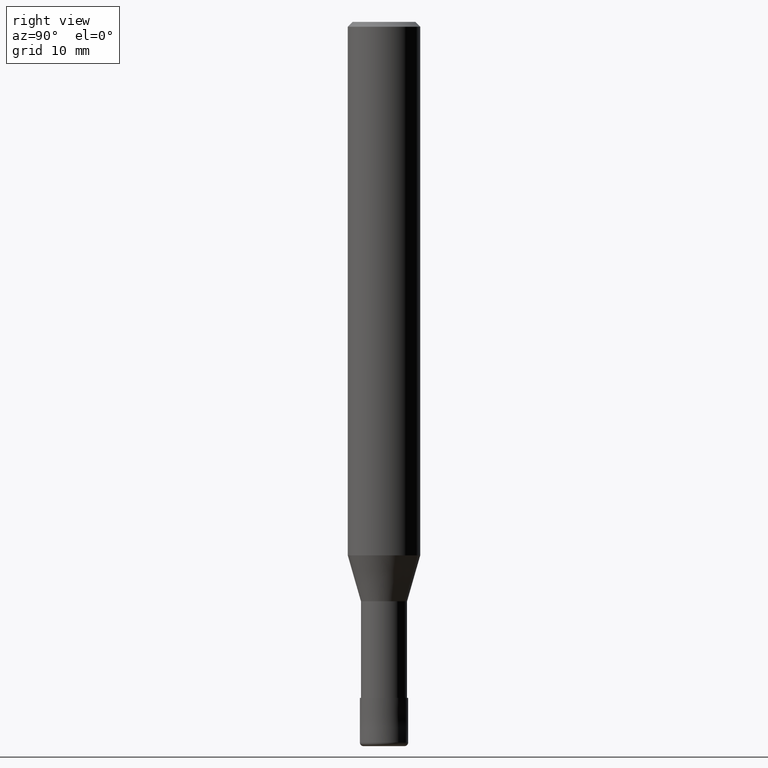
[diagram: clean part render]
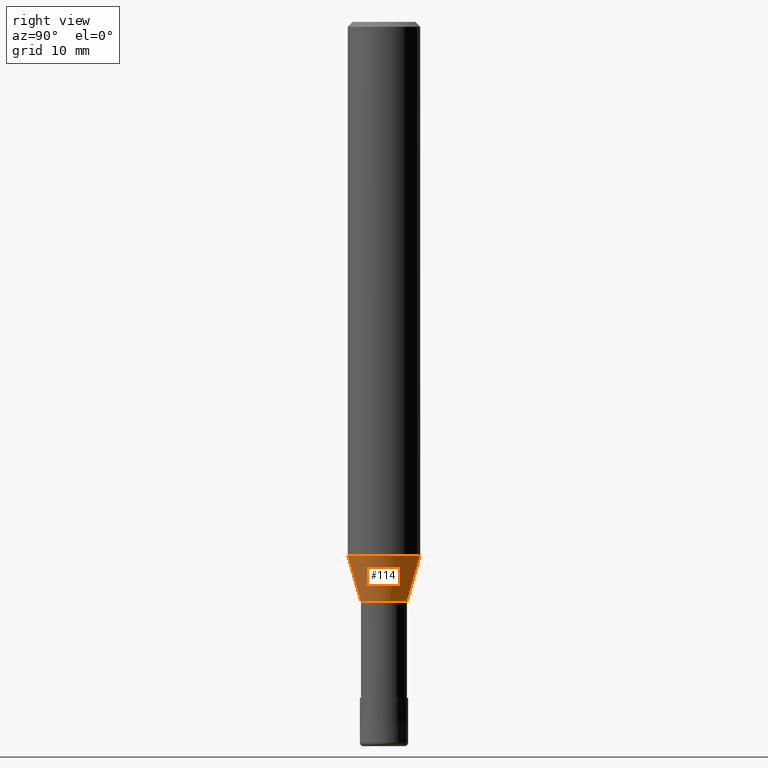
[diagram: same view with one face highlighted and labeled with its STEP entity id]
A machine part, right view. The second image highlights one B-rep face of the part: STEP entity #114.
In plain terms, the highlighted conical surface has half-angle 16.001 deg.
Its self-contained STEP definition (entity closure, byte-faithful):
#102=VERTEX_POINT('',#255);
#114=ADVANCED_FACE('',(#270),#271,.T.);
#128=EDGE_CURVE('',#212,#204,#287,.T.);
#150=EDGE_CURVE('',#222,#212,#309,.T.);
#158=EDGE_CURVE('',#102,#204,#320,.T.);
#190=EDGE_CURVE('',#102,#222,#356,.T.);
#204=VERTEX_POINT('',#371);
#212=VERTEX_POINT('',#379);
#222=VERTEX_POINT('',#391);
#255=CARTESIAN_POINT('',(0.0,2.99995,-44.199));
#270=FACE_OUTER_BOUND('',#435,.T.);
#271=CONICAL_SURFACE('',#436,2.45495,0.279272319969089);
#287=LINE('',#457,#458);
#309=CIRCLE('',#487,1.90995);
#320=CIRCLE('',#500,2.99995);
#356=LINE('',#546,#547);
#371=CARTESIAN_POINT('',(3.67375783114944E-016,-2.99995,-44.199));
#379=CARTESIAN_POINT('',(2.33893690548305E-016,-1.90995,-48.0));
#391=CARTESIAN_POINT('',(0.0,1.90995,-48.0));
#435=EDGE_LOOP('',(#635,#636,#637,#638));
#436=AXIS2_PLACEMENT_3D('',#639,#640,#641);
#457=CARTESIAN_POINT('',(3.00634736831625E-016,-2.45495,-46.0995));
#458=VECTOR('',#658,1.0);
#487=AXIS2_PLACEMENT_3D('',#672,#673,#674);
#500=AXIS2_PLACEMENT_3D('',#694,#695,#696);
#546=CARTESIAN_POINT('',(-3.00634736831625E-016,2.45495,-46.0995));
#547=VECTOR('',#742,1.0);
#635=ORIENTED_EDGE('',*,*,#190,.F.);
#636=ORIENTED_EDGE('',*,*,#158,.T.);
#637=ORIENTED_EDGE('',*,*,#128,.F.);
#638=ORIENTED_EDGE('',*,*,#150,.F.);
#639=CARTESIAN_POINT('',(0.0,0.0,-46.0995));
#640=DIRECTION('',(-0.0,-0.0,1.0));
#641=DIRECTION('',(0.0,1.0,0.0));
#658=DIRECTION('',(3.37570376370609E-017,-0.275656234607102,0.961256282331738));
#672=CARTESIAN_POINT('',(0.0,0.0,-48.0));
#673=DIRECTION('',(0.0,0.0,-1.0));
#674=DIRECTION('',(0.0,1.0,0.0));
#694=CARTESIAN_POINT('',(0.0,0.0,-44.199));
#695=DIRECTION('',(0.0,0.0,-1.0));
#696=DIRECTION('',(0.0,1.0,0.0));
#742=DIRECTION('',(3.37570376370609E-017,-0.275656234607102,-0.961256282331738));